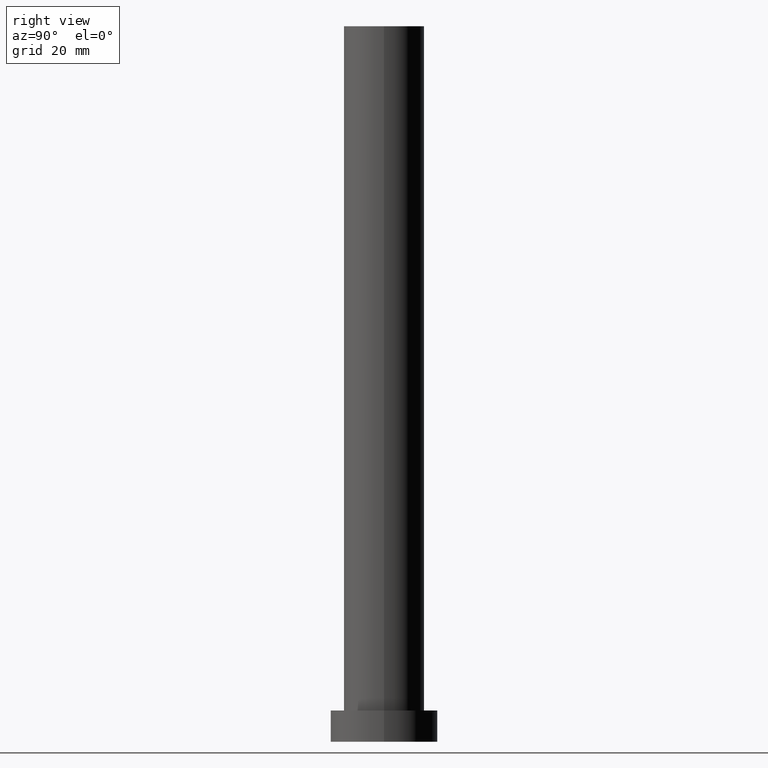
[diagram: clean part render]
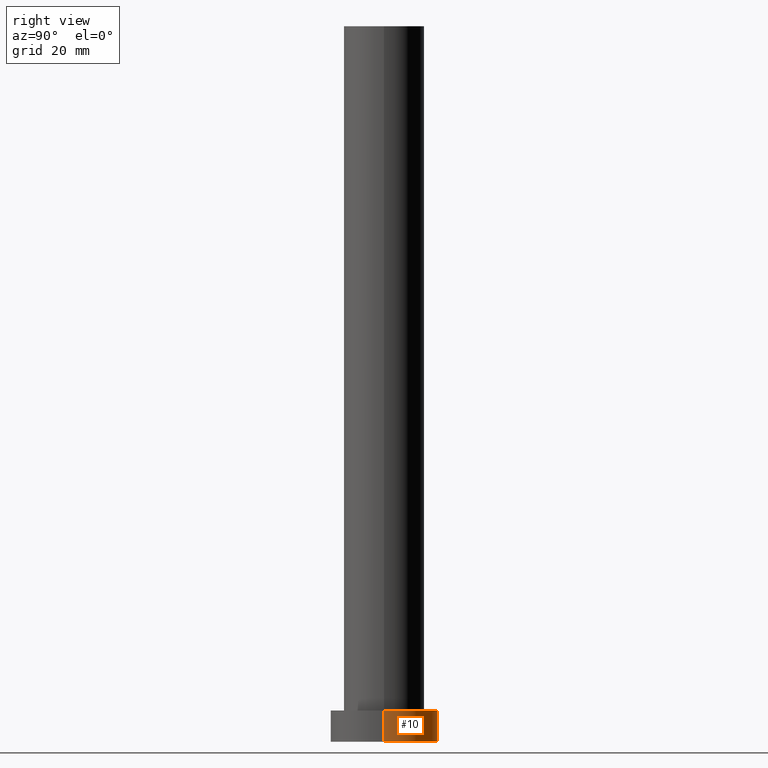
[diagram: same view with one face highlighted and labeled with its STEP entity id]
A machine part, right view. The second image highlights one B-rep face of the part: STEP entity #10.
In plain terms, the highlighted cylindrical surface (partial cylindrical patch) has radius 12 mm, axis along (-0, -0, -1).
Its self-contained STEP definition (entity closure, byte-faithful):
#10 = ADVANCED_FACE ( 'NONE', ( #189 ), #205, .T. ) ;
#14 = CARTESIAN_POINT ( 'NONE',  ( -12.00000000000000178, 0.000000000000000000, 0.000000000000000000 ) ) ;
#17 = CIRCLE ( 'NONE', #155, 12.00000000000000178 ) ;
#21 = DIRECTION ( 'NONE',  ( 0.000000000000000000, 0.000000000000000000, 1.000000000000000000 ) ) ;
#35 = DIRECTION ( 'NONE',  ( 1.000000000000000000, 0.000000000000000000, 0.000000000000000000 ) ) ;
#42 = CARTESIAN_POINT ( 'NONE',  ( -12.00000000000000178, 0.000000000000000000, 7.000000000000000000 ) ) ;
#53 = DIRECTION ( 'NONE',  ( -0.000000000000000000, -0.000000000000000000, -1.000000000000000000 ) ) ;
#57 = CARTESIAN_POINT ( 'NONE',  ( 12.00000000000000178, 1.469576158976824144E-15, 7.000000000000000000 ) ) ;
#71 = DIRECTION ( 'NONE',  ( -0.000000000000000000, -0.000000000000000000, -1.000000000000000000 ) ) ;
#73 = CARTESIAN_POINT ( 'NONE',  ( 12.00000000000000178, 1.469576158976824144E-15, 0.000000000000000000 ) ) ;
#78 = EDGE_CURVE ( 'NONE', #84, #204, #174, .T. ) ;
#84 = VERTEX_POINT ( 'NONE', #114 ) ;
#87 = VERTEX_POINT ( 'NONE', #73 ) ;
#88 = ORIENTED_EDGE ( 'NONE', *, *, #240, .F. ) ;
#89 = EDGE_CURVE ( 'NONE', #84, #87, #231, .T. ) ;
#90 = ORIENTED_EDGE ( 'NONE', *, *, #103, .T. ) ;
#94 = AXIS2_PLACEMENT_3D ( 'NONE', #150, #71, #255 ) ;
#103 = EDGE_CURVE ( 'NONE', #87, #126, #17, .T. ) ;
#108 = VECTOR ( 'NONE', #53, 1000.000000000000000 ) ;
#114 = CARTESIAN_POINT ( 'NONE',  ( 12.00000000000000178, 1.469576158976824144E-15, 7.000000000000000000 ) ) ;
#121 = ORIENTED_EDGE ( 'NONE', *, *, #89, .T. ) ;
#126 = VERTEX_POINT ( 'NONE', #14 ) ;
#130 = DIRECTION ( 'NONE',  ( 0.000000000000000000, 0.000000000000000000, 1.000000000000000000 ) ) ;
#134 = CARTESIAN_POINT ( 'NONE',  ( 0.000000000000000000, 0.000000000000000000, 0.000000000000000000 ) ) ;
#142 = LINE ( 'NONE', #42, #219 ) ;
#147 = DIRECTION ( 'NONE',  ( 1.000000000000000000, 0.000000000000000000, 0.000000000000000000 ) ) ;
#150 = CARTESIAN_POINT ( 'NONE',  ( 0.000000000000000000, 0.000000000000000000, 7.000000000000000000 ) ) ;
#155 = AXIS2_PLACEMENT_3D ( 'NONE', #134, #130, #35 ) ;
#174 = CIRCLE ( 'NONE', #218, 12.00000000000000178 ) ;
#185 = EDGE_LOOP ( 'NONE', ( #201, #121, #90, #88 ) ) ;
#189 = FACE_OUTER_BOUND ( 'NONE', #185, .T. ) ;
#191 = CARTESIAN_POINT ( 'NONE',  ( 0.000000000000000000, 0.000000000000000000, 7.000000000000000000 ) ) ;
#194 = DIRECTION ( 'NONE',  ( -0.000000000000000000, -0.000000000000000000, -1.000000000000000000 ) ) ;
#196 = CARTESIAN_POINT ( 'NONE',  ( -12.00000000000000178, 0.000000000000000000, 7.000000000000000000 ) ) ;
#201 = ORIENTED_EDGE ( 'NONE', *, *, #78, .F. ) ;
#204 = VERTEX_POINT ( 'NONE', #196 ) ;
#205 = CYLINDRICAL_SURFACE ( 'NONE', #94, 12.00000000000000178 ) ;
#218 = AXIS2_PLACEMENT_3D ( 'NONE', #191, #21, #147 ) ;
#219 = VECTOR ( 'NONE', #194, 1000.000000000000000 ) ;
#231 = LINE ( 'NONE', #57, #108 ) ;
#240 = EDGE_CURVE ( 'NONE', #204, #126, #142, .T. ) ;
#255 = DIRECTION ( 'NONE',  ( -1.000000000000000000, 0.000000000000000000, 0.000000000000000000 ) ) ;